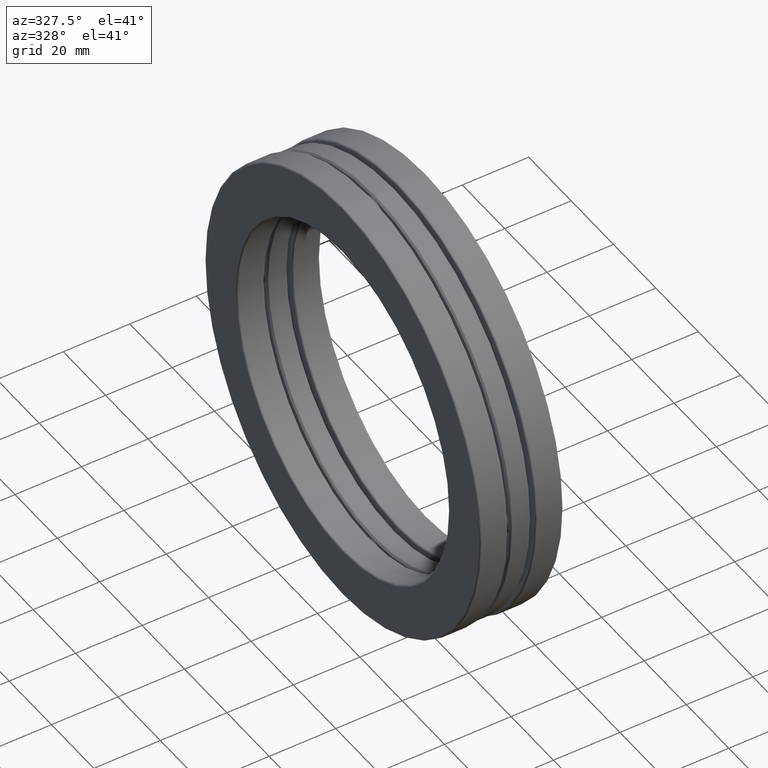
[diagram: clean part render]
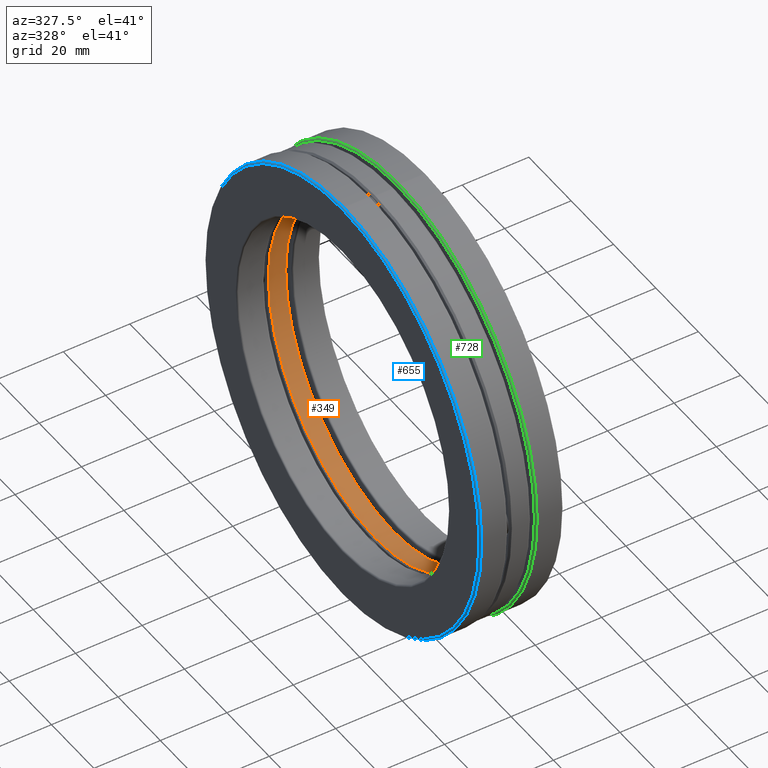
[diagram: same view with three faces highlighted in distinct colors, each labeled with its STEP entity id]
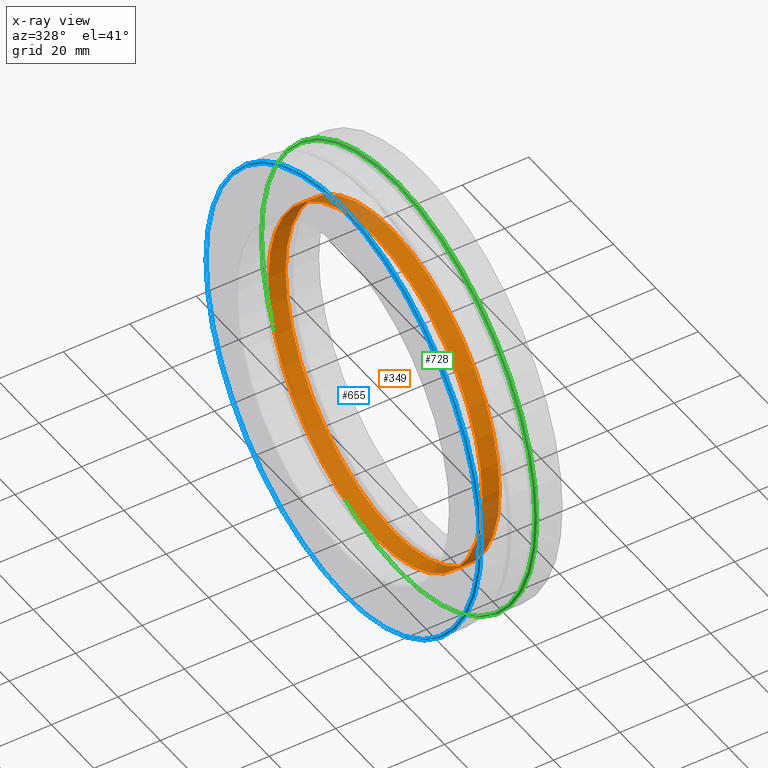
[diagram: x-ray of the same camera — body ghosted, the three highlighted faces saturated]
A machine part, auxiliary view with three faces highlighted in distinct colors.
The next image is the same camera in x-ray (body ghosted, the three faces saturated) — at least one of them is partly hidden behind the body in this view.
Their STEP definitions:

[orange] entity #349 — the highlighted cylindrical surface (bore or boss wall) has radius 50.5079 mm, axis along (-1, -0, -0).
#50 = ORIENTED_EDGE ( 'NONE', *, *, #583, .F. ) ;
#142 = CIRCLE ( 'NONE', #346, 1.988500000000000400 ) ;
#216 = DIRECTION ( 'NONE',  ( -1.000000000000000000, -0.0000000000000000000, -0.0000000000000000000 ) ) ;
#219 = EDGE_CURVE ( 'NONE', #572, #572, #142, .T. ) ;
#224 = DIRECTION ( 'NONE',  ( 0.0000000000000000000, 0.0000000000000000000, 1.000000000000000000 ) ) ;
#229 = AXIS2_PLACEMENT_3D ( 'NONE', #345, #339, #531 ) ;
#240 = DIRECTION ( 'NONE',  ( -1.000000000000000000, -0.0000000000000000000, -0.0000000000000000000 ) ) ;
#277 = VERTEX_POINT ( 'NONE', #384 ) ;
#303 = EDGE_LOOP ( 'NONE', ( #673 ) ) ;
#311 = CARTESIAN_POINT ( 'NONE',  ( -0.1029999999999999700, 0.0000000000000000000, 1.988500000000000400 ) ) ;
#339 = DIRECTION ( 'NONE',  ( -1.000000000000000000, -0.0000000000000000000, -0.0000000000000000000 ) ) ;
#345 = CARTESIAN_POINT ( 'NONE',  ( 0.0000000000000000000, 0.0000000000000000000, 0.0000000000000000000 ) ) ;
#346 = AXIS2_PLACEMENT_3D ( 'NONE', #743, #240, #547 ) ;
#349 = ADVANCED_FACE ( 'NONE', ( #591, #385 ), #712, .F. ) ;
#356 = AXIS2_PLACEMENT_3D ( 'NONE', #537, #216, #224 ) ;
#384 = CARTESIAN_POINT ( 'NONE',  ( 0.1030000000000000400, 0.0000000000000000000, 1.988500000000000400 ) ) ;
#385 = FACE_OUTER_BOUND ( 'NONE', #303, .T. ) ;
#531 = DIRECTION ( 'NONE',  ( 0.0000000000000000000, 0.0000000000000000000, 1.000000000000000000 ) ) ;
#537 = CARTESIAN_POINT ( 'NONE',  ( 0.1030000000000000400, 0.0000000000000000000, 0.0000000000000000000 ) ) ;
#547 = DIRECTION ( 'NONE',  ( 0.0000000000000000000, 0.0000000000000000000, 1.000000000000000000 ) ) ;
#572 = VERTEX_POINT ( 'NONE', #311 ) ;
#583 = EDGE_CURVE ( 'NONE', #277, #277, #681, .T. ) ;
#591 = FACE_OUTER_BOUND ( 'NONE', #644, .T. ) ;
#644 = EDGE_LOOP ( 'NONE', ( #50 ) ) ;
#673 = ORIENTED_EDGE ( 'NONE', *, *, #219, .T. ) ;
#681 = CIRCLE ( 'NONE', #356, 1.988500000000000400 ) ;
#712 = CYLINDRICAL_SURFACE ( 'NONE', #229, 1.988500000000000400 ) ;
#743 = CARTESIAN_POINT ( 'NONE',  ( -0.1029999999999999700, 0.0000000000000000000, 0.0000000000000000000 ) ) ;

[blue] entity #655 — the highlighted toroidal blend (fillet) surface has major radius 64.4906 mm and minor (blend) radius 0.508 mm.
#7 = CARTESIAN_POINT ( 'NONE',  ( -0.4719999999999999200, 0.0000000000000000000, 0.0000000000000000000 ) ) ;
#64 = CIRCLE ( 'NONE', #134, 2.539000000000001000 ) ;
#65 = CARTESIAN_POINT ( 'NONE',  ( -0.4919999999999999900, 0.0000000000000000000, 2.539000000000001000 ) ) ;
#134 = AXIS2_PLACEMENT_3D ( 'NONE', #228, #670, #663 ) ;
#146 = VERTEX_POINT ( 'NONE', #377 ) ;
#158 = FACE_OUTER_BOUND ( 'NONE', #795, .T. ) ;
#182 = FACE_OUTER_BOUND ( 'NONE', #772, .T. ) ;
#200 = DIRECTION ( 'NONE',  ( 0.0000000000000000000, 0.0000000000000000000, 1.000000000000000000 ) ) ;
#228 = CARTESIAN_POINT ( 'NONE',  ( -0.4919999999999999900, 0.0000000000000000000, 0.0000000000000000000 ) ) ;
#233 = ORIENTED_EDGE ( 'NONE', *, *, #810, .F. ) ;
#281 = DIRECTION ( 'NONE',  ( -1.000000000000000000, -0.0000000000000000000, -0.0000000000000000000 ) ) ;
#377 = CARTESIAN_POINT ( 'NONE',  ( -0.4719999999999999200, 0.0000000000000000000, 2.559000000000000600 ) ) ;
#417 = DIRECTION ( 'NONE',  ( 0.0000000000000000000, 0.0000000000000000000, 1.000000000000000000 ) ) ;
#450 = VERTEX_POINT ( 'NONE', #65 ) ;
#511 = DIRECTION ( 'NONE',  ( -1.000000000000000000, -0.0000000000000000000, -0.0000000000000000000 ) ) ;
#521 = EDGE_CURVE ( 'NONE', #146, #146, #544, .T. ) ;
#544 = CIRCLE ( 'NONE', #784, 2.559000000000000600 ) ;
#638 = AXIS2_PLACEMENT_3D ( 'NONE', #803, #281, #417 ) ;
#655 = ADVANCED_FACE ( 'NONE', ( #182, #158 ), #692, .T. ) ;
#663 = DIRECTION ( 'NONE',  ( 0.0000000000000000000, 0.0000000000000000000, 1.000000000000000000 ) ) ;
#670 = DIRECTION ( 'NONE',  ( -1.000000000000000000, -0.0000000000000000000, -0.0000000000000000000 ) ) ;
#692 = TOROIDAL_SURFACE ( 'NONE', #638, 2.539000000000001000, 0.01999999999999992400 ) ;
#772 = EDGE_LOOP ( 'NONE', ( #233 ) ) ;
#773 = ORIENTED_EDGE ( 'NONE', *, *, #521, .T. ) ;
#784 = AXIS2_PLACEMENT_3D ( 'NONE', #7, #511, #200 ) ;
#795 = EDGE_LOOP ( 'NONE', ( #773 ) ) ;
#803 = CARTESIAN_POINT ( 'NONE',  ( -0.4719999999999999200, 0.0000000000000000000, 0.0000000000000000000 ) ) ;
#810 = EDGE_CURVE ( 'NONE', #450, #450, #64, .T. ) ;

[green] entity #728 — the highlighted toroidal blend (fillet) surface has major radius 64.4906 mm and minor (blend) radius 0.508 mm.
#40 = ORIENTED_EDGE ( 'NONE', *, *, #148, .T. ) ;
#55 = TOROIDAL_SURFACE ( 'NONE', #791, 2.539000000000000600, 0.02000000000000016300 ) ;
#66 = CARTESIAN_POINT ( 'NONE',  ( 0.1640032800000007800, 0.0000000000000000000, 2.539000000000001000 ) ) ;
#101 = DIRECTION ( 'NONE',  ( 0.0000000000000000000, 0.0000000000000000000, 1.000000000000000000 ) ) ;
#104 = AXIS2_PLACEMENT_3D ( 'NONE', #808, #483, #815 ) ;
#106 = EDGE_LOOP ( 'NONE', ( #387 ) ) ;
#148 = EDGE_CURVE ( 'NONE', #434, #434, #420, .T. ) ;
#165 = DIRECTION ( 'NONE',  ( -1.000000000000000000, -0.0000000000000000000, -0.0000000000000000000 ) ) ;
#179 = CARTESIAN_POINT ( 'NONE',  ( 0.1840032800000007700, 0.0000000000000000000, 0.0000000000000000000 ) ) ;
#241 = CARTESIAN_POINT ( 'NONE',  ( 0.1840032800000007700, 0.0000000000000000000, 0.0000000000000000000 ) ) ;
#387 = ORIENTED_EDGE ( 'NONE', *, *, #766, .F. ) ;
#390 = CIRCLE ( 'NONE', #104, 2.539000000000001000 ) ;
#420 = CIRCLE ( 'NONE', #486, 2.559000000000000600 ) ;
#424 = DIRECTION ( 'NONE',  ( 0.0000000000000000000, 0.0000000000000000000, 1.000000000000000000 ) ) ;
#434 = VERTEX_POINT ( 'NONE', #740 ) ;
#483 = DIRECTION ( 'NONE',  ( -1.000000000000000000, -0.0000000000000000000, -0.0000000000000000000 ) ) ;
#486 = AXIS2_PLACEMENT_3D ( 'NONE', #241, #165, #101 ) ;
#520 = EDGE_LOOP ( 'NONE', ( #40 ) ) ;
#616 = FACE_OUTER_BOUND ( 'NONE', #520, .T. ) ;
#649 = VERTEX_POINT ( 'NONE', #66 ) ;
#721 = FACE_OUTER_BOUND ( 'NONE', #106, .T. ) ;
#728 = ADVANCED_FACE ( 'NONE', ( #721, #616 ), #55, .T. ) ;
#740 = CARTESIAN_POINT ( 'NONE',  ( 0.1840032800000007700, 0.0000000000000000000, 2.559000000000000600 ) ) ;
#766 = EDGE_CURVE ( 'NONE', #649, #649, #390, .T. ) ;
#791 = AXIS2_PLACEMENT_3D ( 'NONE', #179, #813, #424 ) ;
#808 = CARTESIAN_POINT ( 'NONE',  ( 0.1640032800000007800, 0.0000000000000000000, 0.0000000000000000000 ) ) ;
#813 = DIRECTION ( 'NONE',  ( -1.000000000000000000, -0.0000000000000000000, -0.0000000000000000000 ) ) ;
#815 = DIRECTION ( 'NONE',  ( 0.0000000000000000000, 0.0000000000000000000, 1.000000000000000000 ) ) ;